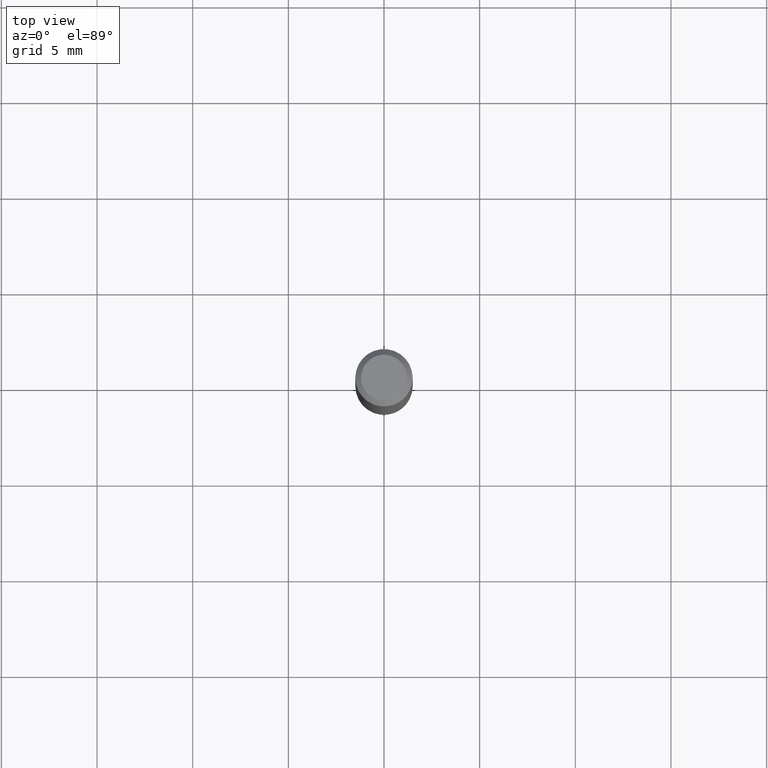
[diagram: clean part render]
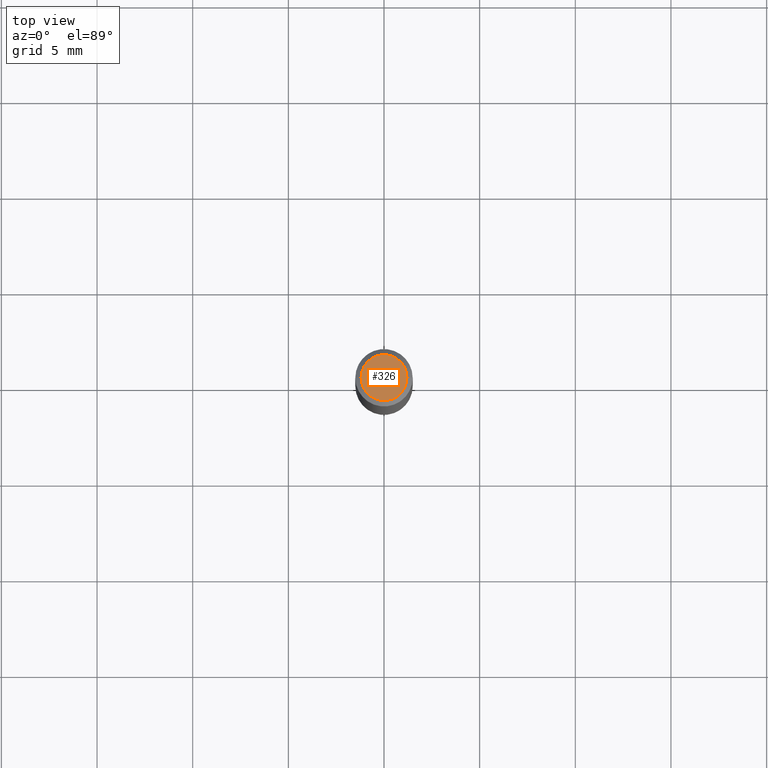
[diagram: same view with one face highlighted and labeled with its STEP entity id]
A machine part, top view. The second image highlights one B-rep face of the part: STEP entity #326.
In plain terms, the highlighted planar face has unit normal (0, -0, -1).
Its self-contained STEP definition (entity closure, byte-faithful):
#5 = CIRCLE ( 'NONE', #318, 0.04724000000000000421 ) ;
#21 = ORIENTED_EDGE ( 'NONE', *, *, #58, .T. ) ;
#38 = PLANE ( 'NONE',  #121 ) ;
#53 = DIRECTION ( 'NONE',  ( 1.000000000000000000, -6.982962677686266711E-15, 4.876185090822587894E-29 ) ) ;
#58 = EDGE_CURVE ( 'NONE', #412, #345, #134, .T. ) ;
#69 = CARTESIAN_POINT ( 'NONE',  ( 8.265746106709734507E-48, -1.180129479067563789E-33, -3.380025165646692144E-19 ) ) ;
#79 = CARTESIAN_POINT ( 'NONE',  ( 4.132873053354867254E-48, -5.900647395337818946E-34, -1.690012582823346072E-19 ) ) ;
#104 = DIRECTION ( 'NONE',  ( -2.445468806185136597E-29, 3.491481338843145583E-15, 1.000000000000000000 ) ) ;
#121 = AXIS2_PLACEMENT_3D ( 'NONE', #79, #185, #304 ) ;
#134 = CIRCLE ( 'NONE', #485, 0.04724000000000000421 ) ;
#153 = CARTESIAN_POINT ( 'NONE',  ( -0.04724000000000000421, 3.504923541997677355E-16, -3.380025165670481712E-19 ) ) ;
#171 = DIRECTION ( 'NONE',  ( -2.445468806185136597E-29, 3.491481338843145583E-15, 1.000000000000000000 ) ) ;
#185 = DIRECTION ( 'NONE',  ( 2.438088387897960049E-29, -3.491481338843145188E-15, -1.000000000000000000 ) ) ;
#245 = ORIENTED_EDGE ( 'NONE', *, *, #464, .T. ) ;
#299 = DIRECTION ( 'NONE',  ( 1.000000000000000000, -6.982962677686266711E-15, 4.876185090822587894E-29 ) ) ;
#304 = DIRECTION ( 'NONE',  ( -1.000000000000000000, 6.982962677686265922E-15, -4.876176775795935793E-29 ) ) ;
#316 = EDGE_LOOP ( 'NONE', ( #245, #21 ) ) ;
#318 = AXIS2_PLACEMENT_3D ( 'NONE', #431, #171, #53 ) ;
#321 = CARTESIAN_POINT ( 'NONE',  ( 0.04724000000000000421, -3.852183633974369838E-16, -3.380025165621689721E-19 ) ) ;
#326 = ADVANCED_FACE ( 'NONE', ( #462 ), #38, .F. ) ;
#345 = VERTEX_POINT ( 'NONE', #153 ) ;
#412 = VERTEX_POINT ( 'NONE', #321 ) ;
#431 = CARTESIAN_POINT ( 'NONE',  ( 8.265746106709734507E-48, -1.180129479067563789E-33, -3.380025165646692144E-19 ) ) ;
#462 = FACE_OUTER_BOUND ( 'NONE', #316, .T. ) ;
#464 = EDGE_CURVE ( 'NONE', #345, #412, #5, .T. ) ;
#485 = AXIS2_PLACEMENT_3D ( 'NONE', #69, #104, #299 ) ;